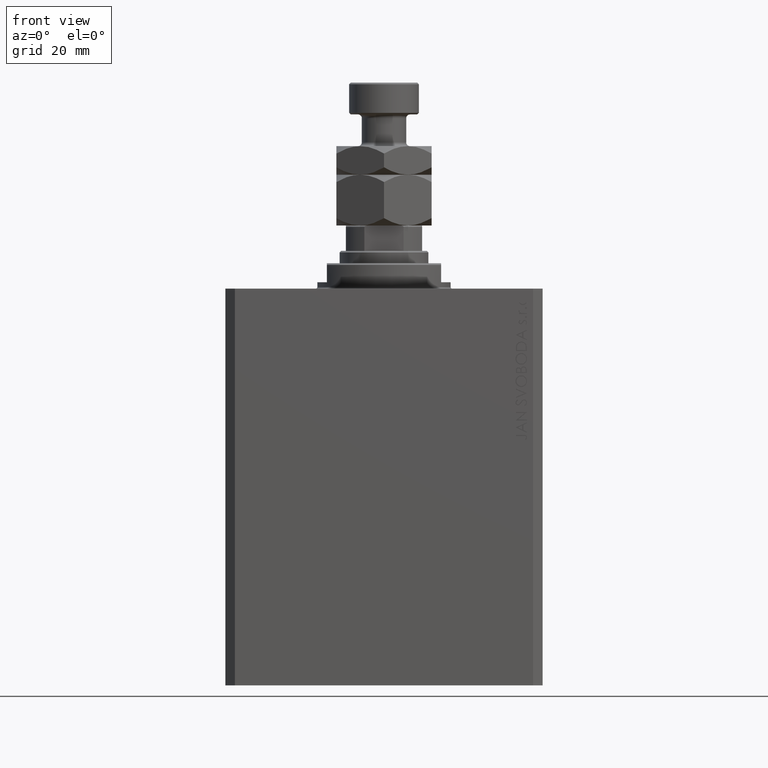
[diagram: clean part render]
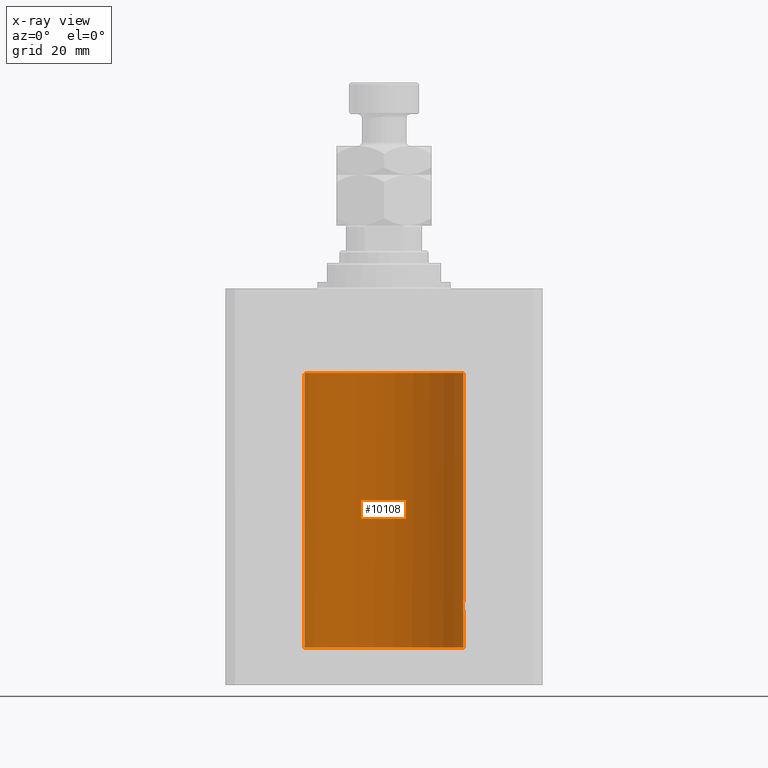
[diagram: x-ray — body ghosted, one internal face saturated and labeled with its STEP entity id]
A machine part, front view, then the same camera in x-ray: the body is ghosted and one INTERNAL B-rep face — a face not visible from any outside direction — is saturated and labeled: STEP entity #10108.
In plain terms, the highlighted cylindrical surface (partial cylindrical patch) has radius 25 mm, axis along (0, 0, 1).
Its self-contained STEP definition (entity closure, byte-faithful):
#194 = DIRECTION ( 'NONE',  ( -0.000000000000000000, -0.000000000000000000, 1.000000000000000000 ) ) ;
#1364 = CARTESIAN_POINT ( 'NONE',  ( 24.92495585240437350, 1.935777409849491759, -99.48051441220836466 ) ) ;
#2193 = CYLINDRICAL_SURFACE ( 'NONE', #46504, 25.00000000000000000 ) ;
#2223 = CARTESIAN_POINT ( 'NONE',  ( 24.98454161695537223, 0.8873356620645981296, -101.7971726743456742 ) ) ;
#2230 = ORIENTED_EDGE ( 'NONE', *, *, #41235, .T. ) ;
#3432 = B_SPLINE_CURVE_WITH_KNOTS ( 'NONE', 3,
 ( #37764, #6860, #14769, #27265, #41477, #45180 ),
 .UNSPECIFIED., .F., .F.,
 ( 4, 2, 4 ),
 ( 0.000000000000000000, 0.0006408866495840856480, 0.001281773299168171296 ),
 .UNSPECIFIED. ) ;
#3468 = CARTESIAN_POINT ( 'NONE',  ( -25.00000000000000000, 3.060241555953638093E-15, -26.99999999999999645 ) ) ;
#3927 = ORIENTED_EDGE ( 'NONE', *, *, #24537, .T. ) ;
#5267 = B_SPLINE_CURVE_WITH_KNOTS ( 'NONE', 3,
 ( #9639, #32151, #47724, #13837, #6418, #2223, #43521, #31898, #47973, #20755, #13591, #40078, #32395, #5925 ),
 .UNSPECIFIED., .F., .F.,
 ( 4, 2, 2, 2, 2, 2, 4 ),
 ( 3.511612687242254074E-18, 0.0003910529405526748294, 0.0007821058811053461894, 0.001173158821658017766, 0.001564211762210689343, 0.002346317643316032063, 0.003128423524421375217 ),
 .UNSPECIFIED. ) ;
#5925 = CARTESIAN_POINT ( 'NONE',  ( 24.91987158875419794, 2.000000000000375255, -100.0000000000000000 ) ) ;
#6055 = CARTESIAN_POINT ( 'NONE',  ( 25.00000000000000000, 0.1305261351234896783, -97.99999999999998579 ) ) ;
#6418 = CARTESIAN_POINT ( 'NONE',  ( 24.99196954445030627, 0.6450912151121352966, -101.8976436764501869 ) ) ;
#6860 = CARTESIAN_POINT ( 'NONE',  ( -24.97950800354324485, 1.026770500031154887, -26.72992212497661768 ) ) ;
#7497 = DIRECTION ( 'NONE',  ( -0.000000000000000000, -0.000000000000000000, 1.000000000000000000 ) ) ;
#7647 = EDGE_CURVE ( 'NONE', #10360, #24644, #3432, .T. ) ;
#7974 = CARTESIAN_POINT ( 'NONE',  ( 25.00000000000000000, 0.000000000000000000, -113.0999999999999943 ) ) ;
#9028 = CARTESIAN_POINT ( 'NONE',  ( 24.97045842037802998, 1.219816859706691625, -98.40971381657300299 ) ) ;
#9250 = DIRECTION ( 'NONE',  ( 0.000000000000000000, 0.000000000000000000, 1.000000000000000000 ) ) ;
#9264 = ORIENTED_EDGE ( 'NONE', *, *, #7647, .T. ) ;
#9639 = CARTESIAN_POINT ( 'NONE',  ( 25.00000000000000000, 3.613683980139323145E-15, -102.0000000000000142 ) ) ;
#9716 = CARTESIAN_POINT ( 'NONE',  ( 25.00000000000000000, 0.000000000000000000, -113.0999999999999943 ) ) ;
#9768 = CARTESIAN_POINT ( 'NONE',  ( 24.99493190796009046, 0.5194315891213243663, -98.06421314474680173 ) ) ;
#10108 = ADVANCED_FACE ( 'NONE', ( #43006 ), #2193, .F. ) ;
#10360 = VERTEX_POINT ( 'NONE', #22199 ) ;
#10494 = CARTESIAN_POINT ( 'NONE',  ( 25.00000000000000000, -1.072061970195355044E-23, -98.00000000000000000 ) ) ;
#10620 = VERTEX_POINT ( 'NONE', #47153 ) ;
#11309 = CARTESIAN_POINT ( 'NONE',  ( -25.00000000000000000, 3.061616997868383043E-15, -113.0999999999999943 ) ) ;
#11689 = CARTESIAN_POINT ( 'NONE',  ( 25.00000000000000000, 0.000000000000000000, -113.0999999999999943 ) ) ;
#12741 = CARTESIAN_POINT ( 'NONE',  ( 24.94947734723934829, 1.590234439578154468, -98.78011295253192259 ) ) ;
#12988 = CARTESIAN_POINT ( 'NONE',  ( 24.92790171662583276, 1.897957730269075105, -99.35585098575664631 ) ) ;
#13391 = VERTEX_POINT ( 'NONE', #11309 ) ;
#13591 = CARTESIAN_POINT ( 'NONE',  ( 24.93900639076503722, 1.748128916801924504, -101.0059564568424264 ) ) ;
#13837 = CARTESIAN_POINT ( 'NONE',  ( 24.99496001540385848, 0.5180074392840622322, -101.9361479946135205 ) ) ;
#14769 = CARTESIAN_POINT ( 'NONE',  ( -24.98680550328683125, 0.8376193197215402453, -26.82896000732461061 ) ) ;
#16060 = CIRCLE ( 'NONE', #43718, 25.00000000000000000 ) ;
#16451 = CARTESIAN_POINT ( 'NONE',  ( 24.93533359819881667, 1.797683477752171743, -99.11371245509397454 ) ) ;
#16689 = CARTESIAN_POINT ( 'NONE',  ( 24.92092960952687264, 1.986938806757485132, -99.73699118910590755 ) ) ;
#17025 = CARTESIAN_POINT ( 'NONE',  ( 0.000000000000000000, 0.000000000000000000, -113.0999999999999943 ) ) ;
#17256 = DIRECTION ( 'NONE',  ( 0.000000000000000000, 0.000000000000000000, 1.000000000000000000 ) ) ;
#18304 = EDGE_CURVE ( 'NONE', #43198, #13391, #16060, .T. ) ;
#18493 = AXIS2_PLACEMENT_3D ( 'NONE', #29115, #17256, #36068 ) ;
#20755 = CARTESIAN_POINT ( 'NONE',  ( 24.94948532700468391, 1.599156973339999066, -101.2291341524913690 ) ) ;
#20845 = ORIENTED_EDGE ( 'NONE', *, *, #45285, .T. ) ;
#21689 = VECTOR ( 'NONE', #47078, 1000.000000000000000 ) ;
#21730 = EDGE_CURVE ( 'NONE', #42847, #21791, #23946, .T. ) ;
#21791 = VERTEX_POINT ( 'NONE', #10494 ) ;
#22199 = CARTESIAN_POINT ( 'NONE',  ( -24.97118339206214088, 1.199999999999987521, -26.59999999999999787 ) ) ;
#23946 = B_SPLINE_CURVE_WITH_KNOTS ( 'NONE', 3,
 ( #46639, #46877, #16689, #1364, #12988, #16451, #28051, #12741, #27801, #42918, #9028, #24107, #44145, #47124, #9768, #24596, #6055, #36732 ),
 .UNSPECIFIED., .F., .F.,
 ( 4, 2, 2, 2, 2, 2, 2, 2, 4 ),
 ( 0.003128423524421375217, 0.003519296810509137119, 0.003910170096596899021, 0.004301043382684660923, 0.004691916668772423693, 0.005082789954860184728, 0.005473663240947946630, 0.005864536527035708532, 0.006255409813123470435 ),
 .UNSPECIFIED. ) ;
#24107 = CARTESIAN_POINT ( 'NONE',  ( 24.98009620012517829, 1.003265033550135854, -98.26494305889434600 ) ) ;
#24303 = LINE ( 'NONE', #9716, #21689 ) ;
#24328 = DIRECTION ( 'NONE',  ( 1.000000000000000000, 0.000000000000000000, 0.000000000000000000 ) ) ;
#24537 = EDGE_CURVE ( 'NONE', #21791, #10620, #24303, .T. ) ;
#24596 = CARTESIAN_POINT ( 'NONE',  ( 24.99894413130754600, 0.2631018416927612402, -98.01307842488789390 ) ) ;
#24644 = VERTEX_POINT ( 'NONE', #3468 ) ;
#25528 = EDGE_LOOP ( 'NONE', ( #39558, #35154, #20845, #2230, #43192, #3927, #31779, #9264 ) ) ;
#27265 = CARTESIAN_POINT ( 'NONE',  ( -24.99718407171789991, 0.4276024655076519632, -26.96566959702169086 ) ) ;
#27292 = CARTESIAN_POINT ( 'NONE',  ( 0.000000000000000000, 0.000000000000000000, -113.0999999999999943 ) ) ;
#27646 = DIRECTION ( 'NONE',  ( 1.000000000000000000, 0.000000000000000000, 0.000000000000000000 ) ) ;
#27801 = CARTESIAN_POINT ( 'NONE',  ( 24.95467834240023919, 1.507571193169164436, -98.67914516237102873 ) ) ;
#28051 = CARTESIAN_POINT ( 'NONE',  ( 24.93982559358191153, 1.735040297787688646, -98.99670286233153149 ) ) ;
#28755 = CIRCLE ( 'NONE', #18493, 25.00000000000000000 ) ;
#29115 = CARTESIAN_POINT ( 'NONE',  ( 0.000000000000000000, 0.000000000000000000, -26.60000000000000142 ) ) ;
#31779 = ORIENTED_EDGE ( 'NONE', *, *, #37233, .T. ) ;
#31898 = CARTESIAN_POINT ( 'NONE',  ( 24.97046928552373046, 1.219632852334577633, -101.5904672177837540 ) ) ;
#32151 = CARTESIAN_POINT ( 'NONE',  ( 25.00000000000000355, 0.1322318523520167877, -102.0000000000000142 ) ) ;
#32395 = CARTESIAN_POINT ( 'NONE',  ( 24.91987158875419439, 2.000000000000375699, -100.2610752061100072 ) ) ;
#34811 = CARTESIAN_POINT ( 'NONE',  ( -25.00000000000000000, 3.061616997868383043E-15, -113.0999999999999943 ) ) ;
#35154 = ORIENTED_EDGE ( 'NONE', *, *, #18304, .F. ) ;
#36068 = DIRECTION ( 'NONE',  ( 1.000000000000000000, 0.000000000000000000, 0.000000000000000000 ) ) ;
#36732 = CARTESIAN_POINT ( 'NONE',  ( 25.00000000000000000, -1.072061970195355044E-23, -98.00000000000000000 ) ) ;
#37233 = EDGE_CURVE ( 'NONE', #10620, #10360, #28755, .T. ) ;
#37764 = CARTESIAN_POINT ( 'NONE',  ( -24.97118339206214088, 1.199999999999987521, -26.59999999999999787 ) ) ;
#38209 = CARTESIAN_POINT ( 'NONE',  ( 24.91987158875419794, 2.000000000000375255, -100.0000000000000000 ) ) ;
#39558 = ORIENTED_EDGE ( 'NONE', *, *, #45016, .F. ) ;
#40078 = CARTESIAN_POINT ( 'NONE',  ( 24.92422785753204906, 1.947526681255389525, -100.5244453533215392 ) ) ;
#41235 = EDGE_CURVE ( 'NONE', #41375, #42847, #5267, .T. ) ;
#41375 = VERTEX_POINT ( 'NONE', #44496 ) ;
#41387 = LINE ( 'NONE', #11689, #41564 ) ;
#41477 = CARTESIAN_POINT ( 'NONE',  ( -25.00000000000000355, 0.2156805908219409651, -26.99999999999999645 ) ) ;
#41564 = VECTOR ( 'NONE', #7497, 1000.000000000000000 ) ;
#42762 = DIRECTION ( 'NONE',  ( -0.000000000000000000, -0.000000000000000000, 1.000000000000000000 ) ) ;
#42847 = VERTEX_POINT ( 'NONE', #38209 ) ;
#42918 = CARTESIAN_POINT ( 'NONE',  ( 24.96525661602875701, 1.320872503675244003, -98.49244428507738292 ) ) ;
#43006 = FACE_OUTER_BOUND ( 'NONE', #25528, .T. ) ;
#43192 = ORIENTED_EDGE ( 'NONE', *, *, #21730, .T. ) ;
#43198 = VERTEX_POINT ( 'NONE', #7974 ) ;
#43521 = CARTESIAN_POINT ( 'NONE',  ( 24.98014008684978648, 1.002218476749560327, -101.7356982428406553 ) ) ;
#43718 = AXIS2_PLACEMENT_3D ( 'NONE', #27292, #9250, #24328 ) ;
#44145 = CARTESIAN_POINT ( 'NONE',  ( 24.98457651818866765, 0.8863534138924961114, -98.20234421602245334 ) ) ;
#44496 = CARTESIAN_POINT ( 'NONE',  ( 25.00000000000000000, 3.613683980139323145E-15, -102.0000000000000142 ) ) ;
#44655 = VECTOR ( 'NONE', #194, 1000.000000000000000 ) ;
#45016 = EDGE_CURVE ( 'NONE', #13391, #24644, #45935, .T. ) ;
#45180 = CARTESIAN_POINT ( 'NONE',  ( -25.00000000000000000, 3.060241555953638093E-15, -26.99999999999999645 ) ) ;
#45285 = EDGE_CURVE ( 'NONE', #43198, #41375, #41387, .T. ) ;
#45935 = LINE ( 'NONE', #34811, #44655 ) ;
#46504 = AXIS2_PLACEMENT_3D ( 'NONE', #17025, #42762, #27646 ) ;
#46639 = CARTESIAN_POINT ( 'NONE',  ( 24.91987158875419794, 2.000000000000375255, -100.0000000000000000 ) ) ;
#46877 = CARTESIAN_POINT ( 'NONE',  ( 24.91987158875419439, 2.000000000000375699, -99.86952236750346401 ) ) ;
#47078 = DIRECTION ( 'NONE',  ( -0.000000000000000000, -0.000000000000000000, 1.000000000000000000 ) ) ;
#47124 = CARTESIAN_POINT ( 'NONE',  ( 24.99199530066696795, 0.6440939830361788188, -98.10201906410962636 ) ) ;
#47153 = CARTESIAN_POINT ( 'NONE',  ( 25.00000000000000000, 0.000000000000000000, -26.60000000000000142 ) ) ;
#47724 = CARTESIAN_POINT ( 'NONE',  ( 24.99895171050671294, 0.2622427397369110347, -101.9870152263268182 ) ) ;
#47973 = CARTESIAN_POINT ( 'NONE',  ( 24.96516502151963124, 1.322522485723470531, -101.5059723511098184 ) ) ;